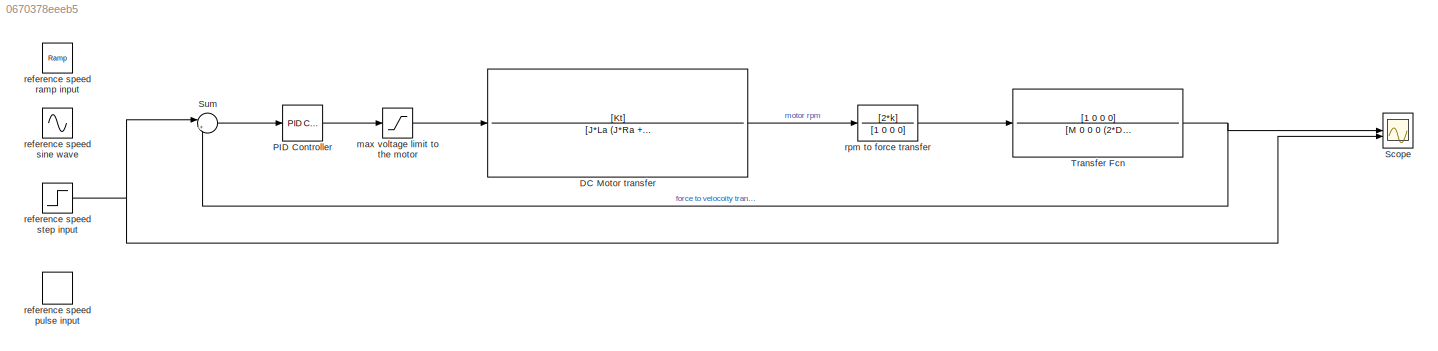
MODEL slx_0670378eeeb5
KIND model
CONFIG AbsTol = auto
CONFIG EnableMultiTasking = off
CONFIG FixedStep = auto
CONFIG MaxStep = auto
CONFIG MinStep = auto
CONFIG RelTol = 1e-3
CONFIG SampleTimeConstraint = Unconstrained
CONFIG SolverName = VariableStepAuto
CONFIG StartTime = 0.0
CONFIG StopTime = 100
BLOCK [TransferFcn] DC Motor transfer
  Denominator = [J*La (J*Ra + B*La) (B*Ra + Kb*Kt)]
  Numerator = [Kt]
BLOCK [Reference] PID Controller  REF=slpidlib/PID Controller
  LibrarySourceBlock = simulink/Continuous/PID Controller
  SourceBlock = slpidlib/PID Controller
  SourceType = PID 1dof
BLOCK [Scope] Scope
  Floating = off
  NumInputPorts = 2
  ScopeSpecificationString = Simulink.scopes.TimeScopeBlockCfg('CurrentConfiguration', extmgr.ConfigurationSet(extmgr.Configuration('Core','General UI',true),extmgr.Configuration('Core','Source UI',true),extmgr.Configuration('Sources','WiredSimulink',true),extmgr.Configuration('Visuals','Time Domain',true,'SerializedDisplays',{struct('MinYLimReal','-1678623029536942.00000','MaxYLimReal','950160205109878.75','YLabelReal','','M...<+1671ch>
BLOCK [Sum] Sum
  Inputs = |+-
BLOCK [TransferFcn] Transfer Fcn
  Denominator = [M 0 0 0 (2*D)]
  Numerator = [1 0 0 0]
BLOCK [Saturate] max voltage limit to the motor
  LowerLimit = -48
  UpperLimit = 48
BLOCK [DiscretePulseGenerator] reference speed pulse input
  PulseType = Time based
  PulseWidth = 5
BLOCK [Reference] reference speed ramp input  REF=simulink/Sources/Ramp
  SourceBlock = simulink/Sources/Ramp
  SourceType = Ramp
BLOCK [Sin] reference speed sine wave
  SampleTime = 0
BLOCK [Step] reference speed step input
  SampleTime = 0
BLOCK [TransferFcn] rpm to force transfer 
  Denominator = [1 0 0 0]
  Numerator = [2*k]
LINE DC Motor transfer:1 -> rpm to force transfer :1
LINE PID Controller:1 -> max voltage limit to the motor:1
LINE Sum:1 -> PID Controller:1
NET Transfer Fcn:1 -> Scope:1, Sum:2
LINE max voltage limit to the motor:1 -> DC Motor transfer:1
NET reference speed step input:1 -> Scope:2, Sum:1
LINE rpm to force transfer :1 -> Transfer Fcn:1
note: NET lines group one-source signal fan-out (src -> all destinations, sorted); 1:1 wires keep LINE
